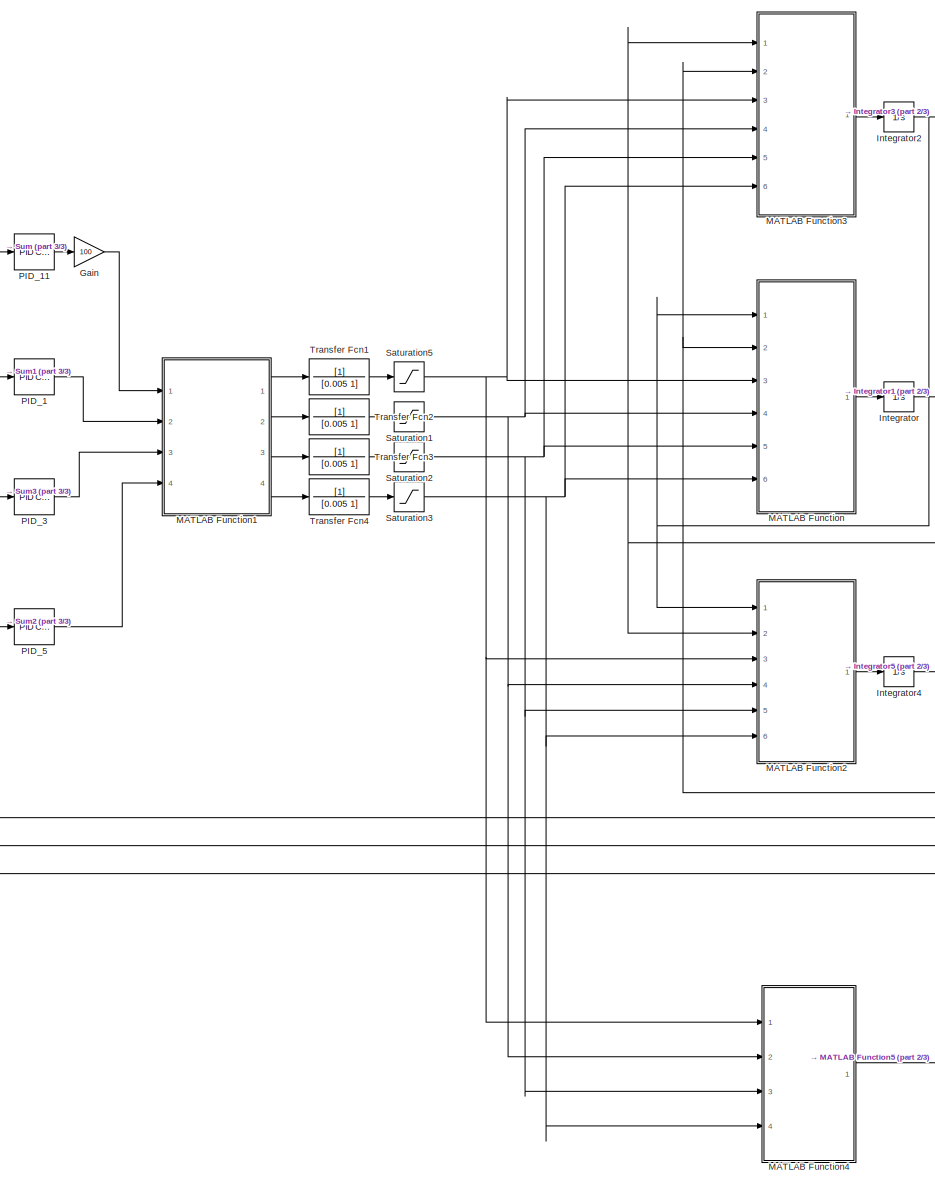
[diagram: root canvas - part 1/3, center side, full height]
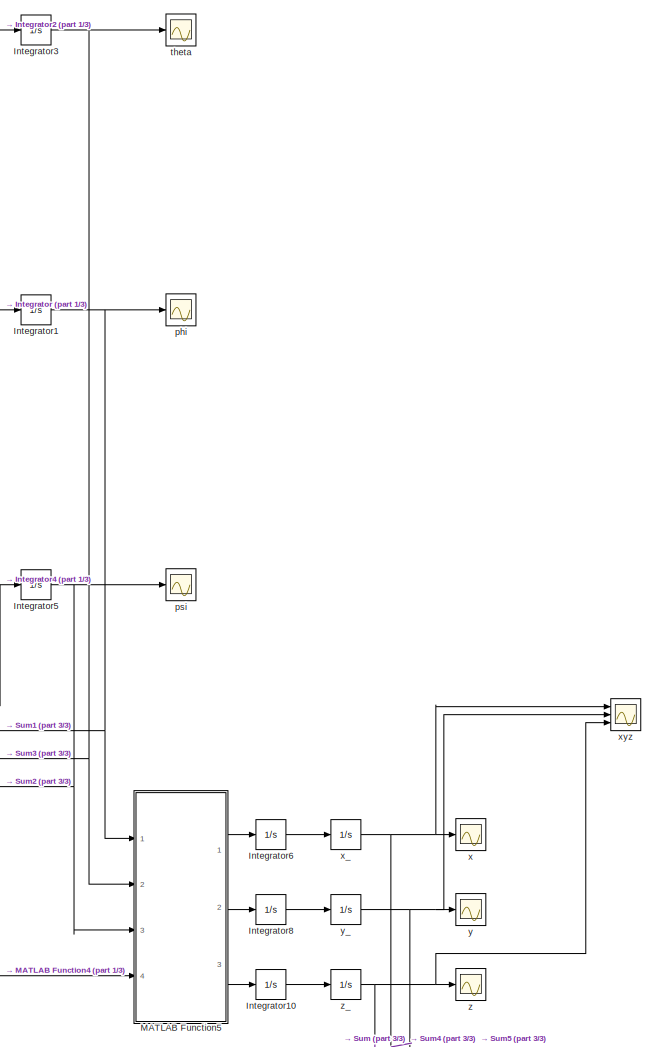
[diagram: root canvas - part 2/3, right side, full height]
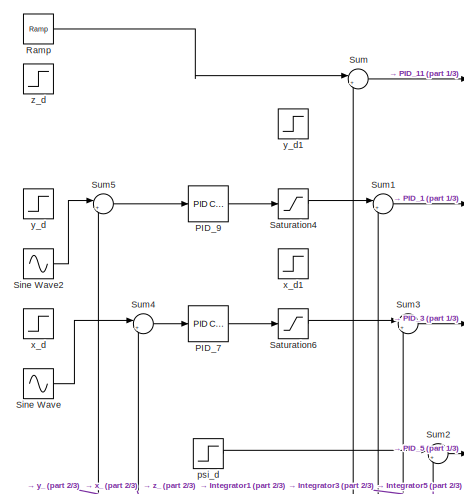
[diagram: root canvas - part 3/3, middle left region]
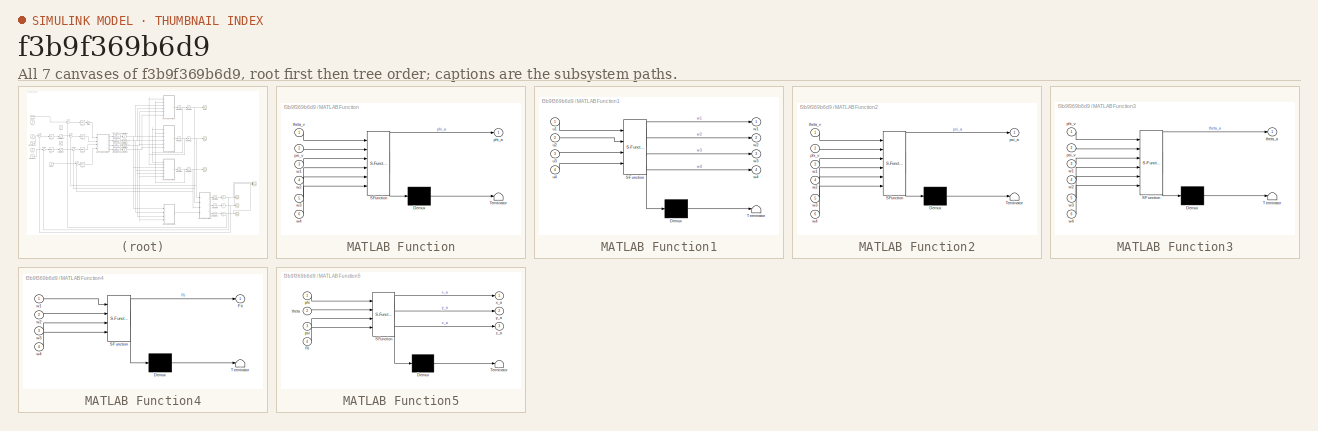
[diagram: thumbnail index - all 7 canvases of the model, root first then tree order]
MODEL slx_f3b9f369b6d9
KIND model
CONFIG AbsTol = auto
CONFIG EnableMultiTasking = off
CONFIG FixedStep = auto
CONFIG MaxStep = auto
CONFIG MinStep = auto
CONFIG RelTol = 1e-4
CONFIG SampleTimeConstraint = Unconstrained
CONFIG Solver = VariableStepAuto
CONFIG SolverName = VariableStepAuto
CONFIG StartTime = 0.0
CONFIG StopTime = 8
BLOCK [Gain] Gain
  Gain = 100
  OutDataTypeStr = Inherit: Inherit via internal rule
  ParamDataTypeStr = Inherit: Inherit via internal rule
  SaturateOnIntegerOverflow = off
BLOCK [Integrator] Integrator
  Ports = [1, 1]
BLOCK [Integrator] Integrator1
  Ports = [1, 1]
BLOCK [Integrator] Integrator10
  Ports = [1, 1]
BLOCK [Integrator] Integrator2
  Ports = [1, 1]
BLOCK [Integrator] Integrator3
  Ports = [1, 1]
BLOCK [Integrator] Integrator4
  Ports = [1, 1]
BLOCK [Integrator] Integrator5
  Ports = [1, 1]
BLOCK [Integrator] Integrator6
  Ports = [1, 1]
BLOCK [Integrator] Integrator8
  Ports = [1, 1]
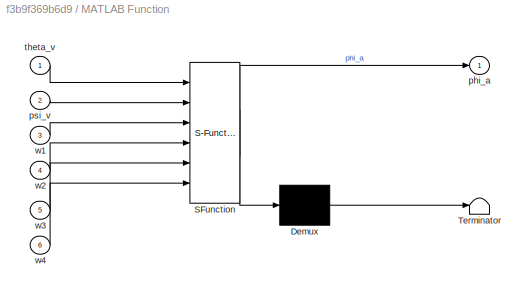
BLOCK [SubSystem] MATLAB Function
  ErrorFcn = Stateflow.Translate.translate
  PermitHierarchicalResolution = ExplicitOnly
  Ports = [6, 1]
  RequestExecContextInheritance = off
  SFBlockType = MATLAB Function
  TreatAsAtomicUnit = on
BLOCK [Demux] MATLAB Function/ Demux 
  Outputs = 1
  Ports = [1, 1]
BLOCK [S-Function] MATLAB Function/ SFunction 
  EnableBusSupport = on
  FunctionName = sf_sfun
  PortCounts = [6 2]
  Ports = [6, 2]
  SFcnIsStateOwnerBlock = off
  SFunctionDeploymentMode = off
  Tag = Stateflow S-Function UAV_DONE 2
BLOCK [Terminator] MATLAB Function/ Terminator 
BLOCK [Outport] MATLAB Function/phi_a
  IconDisplay = Port number
BLOCK [Inport] MATLAB Function/psi_v
  IconDisplay = Port number
  Port = 2
BLOCK [Inport] MATLAB Function/theta_v
  IconDisplay = Port number
BLOCK [Inport] MATLAB Function/w1
  IconDisplay = Port number
  Port = 3
BLOCK [Inport] MATLAB Function/w2
  IconDisplay = Port number
  Port = 4
BLOCK [Inport] MATLAB Function/w3
  IconDisplay = Port number
  Port = 5
BLOCK [Inport] MATLAB Function/w4
  IconDisplay = Port number
  Port = 6
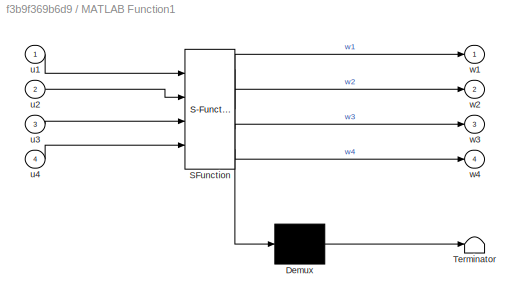
BLOCK [SubSystem] MATLAB Function1
  ErrorFcn = Stateflow.Translate.translate
  PermitHierarchicalResolution = ExplicitOnly
  Ports = [4, 4]
  RequestExecContextInheritance = off
  SFBlockType = MATLAB Function
  TreatAsAtomicUnit = on
BLOCK [Demux] MATLAB Function1/ Demux 
  Outputs = 1
  Ports = [1, 1]
BLOCK [S-Function] MATLAB Function1/ SFunction 
  EnableBusSupport = on
  FunctionName = sf_sfun
  PortCounts = [4 5]
  Ports = [4, 5]
  SFcnIsStateOwnerBlock = off
  SFunctionDeploymentMode = off
  Tag = Stateflow S-Function UAV_DONE 1
BLOCK [Terminator] MATLAB Function1/ Terminator 
BLOCK [Inport] MATLAB Function1/u1
  IconDisplay = Port number
BLOCK [Inport] MATLAB Function1/u2
  IconDisplay = Port number
  Port = 2
BLOCK [Inport] MATLAB Function1/u3
  IconDisplay = Port number
  Port = 3
BLOCK [Inport] MATLAB Function1/u4
  IconDisplay = Port number
  Port = 4
BLOCK [Outport] MATLAB Function1/w1
  IconDisplay = Port number
BLOCK [Outport] MATLAB Function1/w2
  IconDisplay = Port number
  Port = 2
BLOCK [Outport] MATLAB Function1/w3
  IconDisplay = Port number
  Port = 3
BLOCK [Outport] MATLAB Function1/w4
  IconDisplay = Port number
  Port = 4
BLOCK [SubSystem] MATLAB Function2
  ErrorFcn = Stateflow.Translate.translate
  PermitHierarchicalResolution = ExplicitOnly
  Ports = [6, 1]
  RequestExecContextInheritance = off
  SFBlockType = MATLAB Function
  TreatAsAtomicUnit = on
BLOCK [Demux] MATLAB Function2/ Demux 
  Outputs = 1
  Ports = [1, 1]
BLOCK [S-Function] MATLAB Function2/ SFunction 
  EnableBusSupport = on
  FunctionName = sf_sfun
  PortCounts = [6 2]
  Ports = [6, 2]
  SFcnIsStateOwnerBlock = off
  SFunctionDeploymentMode = off
  Tag = Stateflow S-Function UAV_DONE 3
BLOCK [Terminator] MATLAB Function2/ Terminator 
BLOCK [Inport] MATLAB Function2/phi_v
  IconDisplay = Port number
  Port = 2
BLOCK [Outport] MATLAB Function2/psi_a
  IconDisplay = Port number
BLOCK [Inport] MATLAB Function2/theta_v
  IconDisplay = Port number
BLOCK [Inport] MATLAB Function2/w1
  IconDisplay = Port number
  Port = 3
BLOCK [Inport] MATLAB Function2/w2
  IconDisplay = Port number
  Port = 4
BLOCK [Inport] MATLAB Function2/w3
  IconDisplay = Port number
  Port = 5
BLOCK [Inport] MATLAB Function2/w4
  IconDisplay = Port number
  Port = 6
BLOCK [SubSystem] MATLAB Function3
  ErrorFcn = Stateflow.Translate.translate
  PermitHierarchicalResolution = ExplicitOnly
  Ports = [6, 1]
  RequestExecContextInheritance = off
  SFBlockType = MATLAB Function
  TreatAsAtomicUnit = on
BLOCK [Demux] MATLAB Function3/ Demux 
  Outputs = 1
  Ports = [1, 1]
BLOCK [S-Function] MATLAB Function3/ SFunction 
  EnableBusSupport = on
  FunctionName = sf_sfun
  PortCounts = [6 2]
  Ports = [6, 2]
  SFcnIsStateOwnerBlock = off
  SFunctionDeploymentMode = off
  Tag = Stateflow S-Function UAV_DONE 4
BLOCK [Terminator] MATLAB Function3/ Terminator 
BLOCK [Inport] MATLAB Function3/phi_v
  IconDisplay = Port number
BLOCK [Inport] MATLAB Function3/psi_v
  IconDisplay = Port number
  Port = 2
BLOCK [Outport] MATLAB Function3/theta_a
  IconDisplay = Port number
BLOCK [Inport] MATLAB Function3/w1
  IconDisplay = Port number
  Port = 3
BLOCK [Inport] MATLAB Function3/w2
  IconDisplay = Port number
  Port = 4
BLOCK [Inport] MATLAB Function3/w3
  IconDisplay = Port number
  Port = 5
BLOCK [Inport] MATLAB Function3/w4
  IconDisplay = Port number
  Port = 6
BLOCK [SubSystem] MATLAB Function4
  ErrorFcn = Stateflow.Translate.translate
  PermitHierarchicalResolution = ExplicitOnly
  Ports = [4, 1]
  RequestExecContextInheritance = off
  SFBlockType = MATLAB Function
  TreatAsAtomicUnit = on
BLOCK [Demux] MATLAB Function4/ Demux 
  Outputs = 1
  Ports = [1, 1]
BLOCK [S-Function] MATLAB Function4/ SFunction 
  EnableBusSupport = on
  FunctionName = sf_sfun
  PortCounts = [4 2]
  Ports = [4, 2]
  SFcnIsStateOwnerBlock = off
  SFunctionDeploymentMode = off
  Tag = Stateflow S-Function UAV_DONE 5
BLOCK [Terminator] MATLAB Function4/ Terminator 
BLOCK [Outport] MATLAB Function4/Fti
  IconDisplay = Port number
BLOCK [Inport] MATLAB Function4/w1
  IconDisplay = Port number
BLOCK [Inport] MATLAB Function4/w2
  IconDisplay = Port number
  Port = 2
BLOCK [Inport] MATLAB Function4/w3
  IconDisplay = Port number
  Port = 3
BLOCK [Inport] MATLAB Function4/w4
  IconDisplay = Port number
  Port = 4
BLOCK [SubSystem] MATLAB Function5
  ErrorFcn = Stateflow.Translate.translate
  PermitHierarchicalResolution = ExplicitOnly
  Ports = [4, 3]
  RequestExecContextInheritance = off
  SFBlockType = MATLAB Function
  TreatAsAtomicUnit = on
BLOCK [Demux] MATLAB Function5/ Demux 
  Outputs = 1
  Ports = [1, 1]
BLOCK [S-Function] MATLAB Function5/ SFunction 
  EnableBusSupport = on
  FunctionName = sf_sfun
  PortCounts = [4 4]
  Ports = [4, 4]
  SFcnIsStateOwnerBlock = off
  SFunctionDeploymentMode = off
  Tag = Stateflow S-Function UAV_DONE 6
BLOCK [Terminator] MATLAB Function5/ Terminator 
BLOCK [Inport] MATLAB Function5/Fti
  IconDisplay = Port number
  Port = 4
BLOCK [Inport] MATLAB Function5/phi
  IconDisplay = Port number
BLOCK [Inport] MATLAB Function5/psi
  IconDisplay = Port number
  Port = 3
BLOCK [Inport] MATLAB Function5/theta
  IconDisplay = Port number
  Port = 2
BLOCK [Outport] MATLAB Function5/x_a
  IconDisplay = Port number
BLOCK [Outport] MATLAB Function5/y_a
  IconDisplay = Port number
  Port = 2
BLOCK [Outport] MATLAB Function5/z_a
  IconDisplay = Port number
  Port = 3
BLOCK [Reference] PID_1  REF=simulink/Continuous/PID Controller
  Ports = [1, 1]
  SourceBlock = simulink/Continuous/PID Controller
  SourceProductBaseCode = SL
  SourceProductName = Simulink
  SourceType = PID 1dof
BLOCK [Reference] PID_11  REF=simulink/Continuous/PID Controller
  Ports = [1, 1]
  SourceBlock = simulink/Continuous/PID Controller
  SourceProductBaseCode = SL
  SourceProductName = Simulink
  SourceType = PID 1dof
BLOCK [Reference] PID_3  REF=simulink/Continuous/PID Controller
  Ports = [1, 1]
  SourceBlock = simulink/Continuous/PID Controller
  SourceProductBaseCode = SL
  SourceProductName = Simulink
  SourceType = PID 1dof
BLOCK [Reference] PID_5  REF=simulink/Continuous/PID Controller
  Ports = [1, 1]
  SourceBlock = simulink/Continuous/PID Controller
  SourceProductBaseCode = SL
  SourceProductName = Simulink
  SourceType = PID 1dof
BLOCK [Reference] PID_7  REF=simulink/Continuous/PID Controller
  Ports = [1, 1]
  SourceBlock = simulink/Continuous/PID Controller
  SourceProductBaseCode = SL
  SourceProductName = Simulink
  SourceType = PID 1dof
BLOCK [Reference] PID_9  REF=simulink/Continuous/PID Controller
  Ports = [1, 1]
  SourceBlock = simulink/Continuous/PID Controller
  SourceProductBaseCode = SL
  SourceProductName = Simulink
  SourceType = PID 1dof
BLOCK [Reference] Ramp  REF=simulink/Sources/Ramp
  Ports = [0, 1]
  SourceBlock = simulink/Sources/Ramp
  SourceProductBaseCode = SL
  SourceProductName = Simulink
  SourceType = Ramp
BLOCK [Saturate] Saturation1
  InputPortMap = u0
  LowerLimit = -2600*2600
  Ports = [1, 1]
  UpperLimit = 2600*2600
BLOCK [Saturate] Saturation2
  InputPortMap = u0
  LowerLimit = -2600*2600
  Ports = [1, 1]
  UpperLimit = 2600*2600
BLOCK [Saturate] Saturation3
  InputPortMap = u0
  LowerLimit = -2600*2600
  Ports = [1, 1]
  UpperLimit = 2600*2600
BLOCK [Saturate] Saturation4
  InputPortMap = u0
  LowerLimit = -1.5
  Ports = [1, 1]
  UpperLimit = 1.5
BLOCK [Saturate] Saturation5
  InputPortMap = u0
  LowerLimit = -2600*2600
  Ports = [1, 1]
  UpperLimit = 2600*2600
BLOCK [Saturate] Saturation6
  InputPortMap = u0
  LowerLimit = -1.5
  Ports = [1, 1]
  UpperLimit = 1.5
BLOCK [Sin] Sine Wave
  Frequency = 1*pi()
  Ports = [0, 1]
  SampleTime = 0
BLOCK [Sin] Sine Wave2
  Frequency = 1*pi()
  Phase = pi()/2
  Ports = [0, 1]
  SampleTime = 0
BLOCK [Sum] Sum
  IconShape = round
  InputSameDT = off
  Inputs = |+-
  OutDataTypeStr = Inherit: Inherit via internal rule
  Ports = [2, 1]
  SaturateOnIntegerOverflow = off
BLOCK [Sum] Sum1
  IconShape = round
  InputSameDT = off
  Inputs = |+-
  OutDataTypeStr = Inherit: Inherit via internal rule
  Ports = [2, 1]
  SaturateOnIntegerOverflow = off
BLOCK [Sum] Sum2
  IconShape = round
  InputSameDT = off
  Inputs = |+-
  OutDataTypeStr = Inherit: Inherit via internal rule
  Ports = [2, 1]
  SaturateOnIntegerOverflow = off
BLOCK [Sum] Sum3
  IconShape = round
  InputSameDT = off
  Inputs = |+-
  OutDataTypeStr = Inherit: Inherit via internal rule
  Ports = [2, 1]
  SaturateOnIntegerOverflow = off
BLOCK [Sum] Sum4
  IconShape = round
  InputSameDT = off
  Inputs = |+-
  OutDataTypeStr = Inherit: Inherit via internal rule
  Ports = [2, 1]
  SaturateOnIntegerOverflow = off
BLOCK [Sum] Sum5
  IconShape = round
  InputSameDT = off
  Inputs = |+-
  OutDataTypeStr = Inherit: Inherit via internal rule
  Ports = [2, 1]
  SaturateOnIntegerOverflow = off
BLOCK [TransferFcn] Transfer Fcn1
  Denominator = [0.005 1]
BLOCK [TransferFcn] Transfer Fcn2
  Denominator = [0.005 1]
BLOCK [TransferFcn] Transfer Fcn3
  Denominator = [0.005 1]
BLOCK [TransferFcn] Transfer Fcn4
  Denominator = [0.005 1]
BLOCK [Scope] phi
  Floating = off
  NumInputPorts = 1
  Ports = [1]
  ScopeSpecificationString = Simulink.scopes.TimeScopeBlockCfg('CurrentConfiguration', extmgr.ConfigurationSet(extmgr.Configuration('Core','General UI',true),extmgr.Configuration('Core','Source UI',true),extmgr.Configuration('Sources','WiredSimulink',true,'DataLoggingVariableName','ScopeData2'),extmgr.Configuration('Visuals','Time Domain',true,'SerializedDisplays',{struct('MinYLimReal','-1.58385','MaxYLimReal','1.92476','YLab...<+1495ch>
BLOCK [Scope] psi
  Floating = off
  NumInputPorts = 1
  Ports = [1]
  ScopeSpecificationString = Simulink.scopes.TimeScopeBlockCfg('CurrentConfiguration', extmgr.ConfigurationSet(extmgr.Configuration('Core','General UI',true),extmgr.Configuration('Core','Source UI',true),extmgr.Configuration('Sources','WiredSimulink',true,'DataLoggingVariableName','ScopeData1'),extmgr.Configuration('Visuals','Time Domain',true,'SerializedDisplays',{struct('MinYLimReal','-0.00942','MaxYLimReal','0.00197','YLab...<+1470ch>
BLOCK [Step] psi_d
  After = 0
  SampleTime = 0
BLOCK [Scope] theta
  Floating = off
  NumInputPorts = 1
  Ports = [1]
  ScopeSpecificationString = Simulink.scopes.TimeScopeBlockCfg('CurrentConfiguration', extmgr.ConfigurationSet(extmgr.Configuration('Core','General UI',true),extmgr.Configuration('Core','Source UI',true),extmgr.Configuration('Sources','WiredSimulink',true),extmgr.Configuration('Visuals','Time Domain',true,'SerializedDisplays',{struct('MinYLimReal','-2.06696','MaxYLimReal','1.99029','YLabelReal','','MinYLimMag','0.00000','MaxY...<+1431ch>
BLOCK [Scope] x
  Floating = off
  NumInputPorts = 1
  Ports = [1]
  ScopeSpecificationString = Simulink.scopes.TimeScopeBlockCfg('CurrentConfiguration', extmgr.ConfigurationSet(extmgr.Configuration('Core','General UI',true),extmgr.Configuration('Core','Source UI',true),extmgr.Configuration('Sources','WiredSimulink',true,'DataLoggingVariableName','ScopeData3'),extmgr.Configuration('Visuals','Time Domain',true,'SerializedDisplays',{struct('MinYLimReal','-0.12669','MaxYLimReal','1.14018','YLab...<+1461ch>
BLOCK [Integrator] x_
  Ports = [1, 1]
BLOCK [Step] x_d
  SampleTime = 0
  Time = 3
BLOCK [Step] x_d1
  SampleTime = 0
BLOCK [Scope] xyz
  Floating = off
  NumInputPorts = 3
  Ports = [3]
  ScopeSpecificationString = Simulink.scopes.TimeScopeBlockCfg('CurrentConfiguration', extmgr.ConfigurationSet(extmgr.Configuration('Core','General UI',true),extmgr.Configuration('Core','Source UI',true),extmgr.Configuration('Sources','WiredSimulink',true,'DataLoggingVariableName','ScopeData1'),extmgr.Configuration('Visuals','Time Domain',true,'SerializedDisplays',{struct('MinYLimReal','-1.98522','MaxYLimReal','4.68891','YLab...<+1537ch>
BLOCK [Scope] y
  Floating = off
  NumInputPorts = 1
  Ports = [1]
  ScopeSpecificationString = Simulink.scopes.TimeScopeBlockCfg('CurrentConfiguration', extmgr.ConfigurationSet(extmgr.Configuration('Core','General UI',true),extmgr.Configuration('Core','Source UI',true),extmgr.Configuration('Sources','WiredSimulink',true,'DataLoggingVariableName','ScopeData4'),extmgr.Configuration('Visuals','Time Domain',true,'SerializedDisplays',{struct('MinYLimReal','-0.13581','MaxYLimReal','1.22229','YLab...<+1461ch>
BLOCK [Integrator] y_
  Ports = [1, 1]
BLOCK [Step] y_d
  SampleTime = 0
  Time = 3
BLOCK [Step] y_d1
  SampleTime = 0
BLOCK [Scope] z
  Floating = off
  NumInputPorts = 1
  Ports = [1]
  ScopeSpecificationString = Simulink.scopes.TimeScopeBlockCfg('CurrentConfiguration', extmgr.ConfigurationSet(extmgr.Configuration('Core','General UI',true),extmgr.Configuration('Core','Source UI',true),extmgr.Configuration('Sources','WiredSimulink',true,'DataLoggingVariableName','ScopeData5'),extmgr.Configuration('Visuals','Time Domain',true,'SerializedDisplays',{struct('MinYLimReal','-0.34343','MaxYLimReal','0.15539','YLab...<+1461ch>
BLOCK [Integrator] z_
  Ports = [1, 1]
BLOCK [Step] z_d
  After = 0
  SampleTime = 0
  Time = 5
LINE Gain:1 -> MATLAB Function1:1
LINE Integrator10:1 -> z_:1
NET Integrator1:1 -> MATLAB Function5:1, Sum1:2, phi:1
NET Integrator2:1 -> Integrator3:1, MATLAB Function2:1, MATLAB Function:1
NET Integrator3:1 -> MATLAB Function5:2, Sum3:2, theta:1
NET Integrator4:1 -> Integrator5:1, MATLAB Function3:2, MATLAB Function:2
NET Integrator5:1 -> MATLAB Function5:3, Sum2:2, psi:1
LINE Integrator6:1 -> x_:1
LINE Integrator8:1 -> y_:1
NET Integrator:1 -> Integrator1:1, MATLAB Function2:2, MATLAB Function3:1
LINE MATLAB Function1:1 -> Transfer Fcn1:1
LINE MATLAB Function1:2 -> Transfer Fcn2:1
LINE MATLAB Function1:3 -> Transfer Fcn3:1
LINE MATLAB Function1:4 -> Transfer Fcn4:1
LINE MATLAB Function2:1 -> Integrator4:1
LINE MATLAB Function3:1 -> Integrator2:1
LINE MATLAB Function4:1 -> MATLAB Function5:4
LINE MATLAB Function5:1 -> Integrator6:1
LINE MATLAB Function5:2 -> Integrator8:1
LINE MATLAB Function5:3 -> Integrator10:1
LINE MATLAB Function:1 -> Integrator:1
LINE PID_11:1 -> Gain:1
LINE PID_1:1 -> MATLAB Function1:2
LINE PID_3:1 -> MATLAB Function1:3
LINE PID_5:1 -> MATLAB Function1:4
LINE PID_7:1 -> Saturation6:1
LINE PID_9:1 -> Saturation4:1
LINE Ramp:1 -> Sum:1
NET Saturation1:1 -> MATLAB Function2:4, MATLAB Function3:4, MATLAB Function4:2, MATLAB Function:4
NET Saturation2:1 -> MATLAB Function2:5, MATLAB Function3:5, MATLAB Function4:3, MATLAB Function:5
NET Saturation3:1 -> MATLAB Function2:6, MATLAB Function3:6, MATLAB Function4:4, MATLAB Function:6
LINE Saturation4:1 -> Sum1:1
NET Saturation5:1 -> MATLAB Function2:3, MATLAB Function3:3, MATLAB Function4:1, MATLAB Function:3
LINE Saturation6:1 -> Sum3:1
LINE Sine Wave2:1 -> Sum5:1
LINE Sine Wave:1 -> Sum4:1
LINE Sum1:1 -> PID_1:1
LINE Sum2:1 -> PID_5:1
LINE Sum3:1 -> PID_3:1
LINE Sum4:1 -> PID_7:1
LINE Sum5:1 -> PID_9:1
LINE Sum:1 -> PID_11:1
LINE Transfer Fcn1:1 -> Saturation5:1
LINE Transfer Fcn2:1 -> Saturation1:1
LINE Transfer Fcn3:1 -> Saturation2:1
LINE Transfer Fcn4:1 -> Saturation3:1
LINE psi_d:1 -> Sum2:1
NET x_:1 -> Sum4:2, x:1, xyz:1
NET y_:1 -> Sum5:2, xyz:2, y:1
NET z_:1 -> Sum:2, xyz:3, z:1
note: NET lines group one-source signal fan-out (src -> all destinations, sorted); 1:1 wires keep LINE
CHART MATLAB Function1 states=1 transitions=1
  STATE_LABEL 'eML_blk_kernel()'
  STATE_LABEL "SCRIPT:\nfunction [w1,w2,w3,w4] = U2w(u1,u2,u3,u4)\nb=3.13*1e-5;\nd=7.5*1e-7;\nl=0.2;\nbl=b*l;\nBd=[b b b b\n    0 -bl 0 bl\n    -bl 0 bl 0\n    -d d -d d];\nU=[u1,u2,u3,u4]';\nw=Bd^-1*U;\nw1=w(1);\nw2=w(2);\nw3=w(3);\nw4=w(4);"
CHART MATLAB Function states=1 transitions=1
  STATE_LABEL 'eML_blk_kernel()'
  STATE_LABEL 'SCRIPT:\nfunction phi_a = phi_a(theta_v,psi_v,w1,w2,w3,w4)\nIXX=2.353*1e-3;\nIYY=2.635*1e-3;\nIZZ=5.262*1e-2;\nl=0.2;\nb=3.13*1e-5;\nJR=6*1e-5;\n\nT=b*l*(w4-w2);\n\nW1=real(sqrt(complex(w1)));\nW2=real(sqrt(complex(w2)));\nW3=real(sqrt(complex(w3)));\nW4=real(sqrt(complex(w4)));\nWR=-W1+W2-W3+W4;\n\nphi_a=theta_v*psi_v*(IYY-IZZ)/IXX;\nphi_a=phi_a+JR*theta_v*WR/IXX;\nphi_a=phi_a+T/IXX;'
CHART MATLAB Function2 states=1 transitions=1
  STATE_LABEL 'eML_blk_kernel()'
  STATE_LABEL 'SCRIPT:\nfunction psi_a = psi_a(theta_v,phi_v,w1,w2,w3,w4)\nIXX=2.353*1e-3;\nIYY=2.635*1e-3;\nIZZ=5.262*1e-2;\nd=7.5*1e-7;\n\nM1=d*w1;\nM2=d*w2;\nM3=d*w3;\nM4=d*w4;\nM=-M1+M2-M3+M4;\n\npsi_a=theta_v*phi_v*(IXX-IYY)/IZZ;\npsi_a=psi_a+M/IZZ;'
CHART MATLAB Function3 states=1 transitions=1
  STATE_LABEL 'eML_blk_kernel()'
  STATE_LABEL 'SCRIPT:\nfunction theta_a = theta_a(phi_v,psi_v,w1,w2,w3,w4)\nIXX=2.353*1e-3;\nIYY=2.635*1e-3;\nIZZ=5.262*1e-2;\nl=0.2;\nb=3.13*1e-5;\nJR=6*1e-5;\n\nT=b*l*(w3-w1);\n\nW1=real(sqrt(complex(w1)));\nW2=real(sqrt(complex(w2)));\nW3=real(sqrt(complex(w3)));\nW4=real(sqrt(complex(w4)));\nWR=-W1+W2-W3+W4;\n\ntheta_a=phi_v*psi_v*(IZZ-IXX)/IYY;\ntheta_a=theta_a-JR*phi_v*WR/IYY;\ntheta_a=theta_a+T/IYY;'
CHART MATLAB Function4 states=1 transitions=1
  STATE_LABEL 'eML_blk_kernel()'
  STATE_LABEL 'SCRIPT:\nfunction Fti= Fti(w1,w2,w3,w4)\nb=3.13*1e-5;\nFti=b*(w1+w2+w3+w4);'
CHART MATLAB Function5 states=1 transitions=1
  STATE_LABEL 'eML_blk_kernel()'
  STATE_LABEL 'SCRIPT:\nfunction [x_a,y_a,z_a] = xyz_a(phi,theta,psi,Fti)\nm=1.2;\nx_a=sin(psi)*sin(phi)+cos(psi)*sin(theta)*cos(phi);\nx_a=x_a*Fti/m;\n\ny_a=(-cos(psi)*sin(phi)+sin(psi)*sin(theta)*cos(phi));\ny_a=-y_a*Fti/m;\n\nz_a=(cos(theta)*cos(phi))*Fti/m-9.81;\n'
